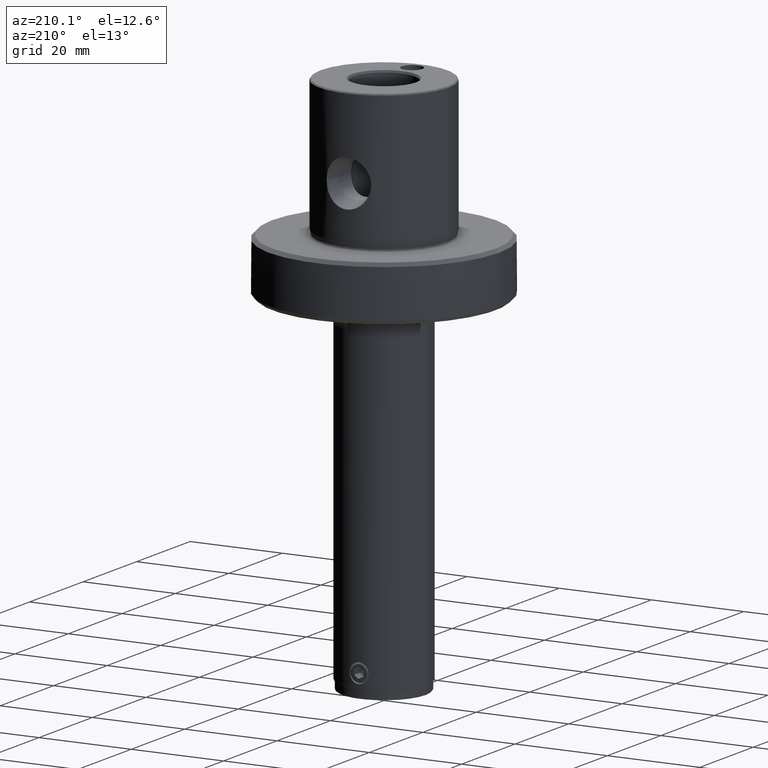
[diagram: clean part render]
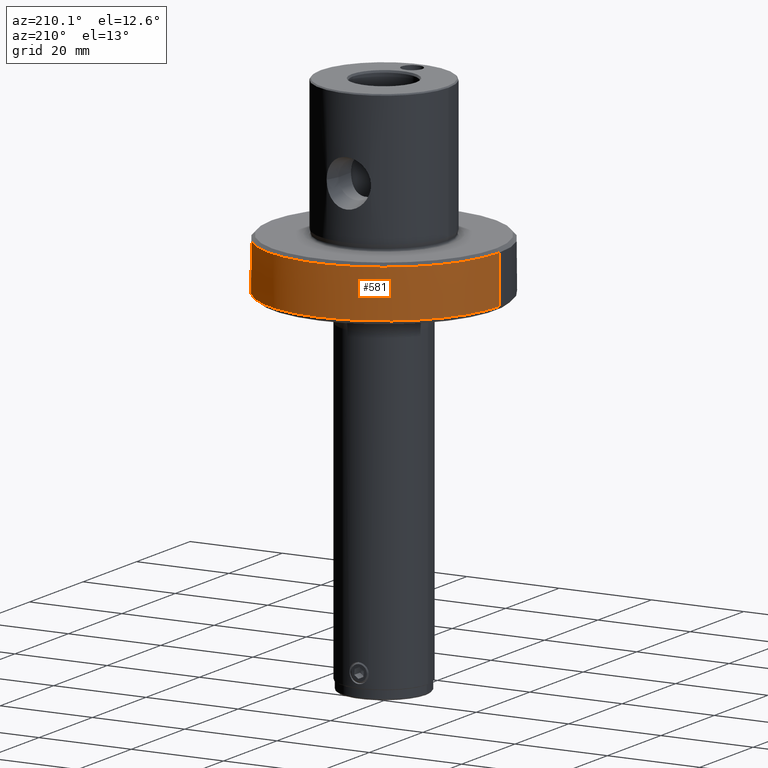
[diagram: same view with one face highlighted and labeled with its STEP entity id]
A machine part, auxiliary view. The second image highlights one B-rep face of the part: STEP entity #581.
In plain terms, the highlighted cylindrical surface (partial cylindrical patch) has radius 25 mm, axis along (-0, -0, 1).
Its self-contained STEP definition (entity closure, byte-faithful):
#561=VERTEX_POINT('NONE',#1587);
#581=ADVANCED_FACE('NONE',(#1609),#1610,.T.);
#893=VERTEX_POINT('NONE',#1951);
#923=EDGE_CURVE('NONE',#893,#1029,#1988,.T.);
#979=EDGE_CURVE('NONE',#561,#1421,#2052,.T.);
#1023=VERTEX_POINT('NONE',#2100);
#1029=VERTEX_POINT('NONE',#2108);
#1199=EDGE_CURVE('NONE',#1421,#1029,#2298,.T.);
#1363=EDGE_CURVE('NONE',#1023,#561,#2478,.T.);
#1421=VERTEX_POINT('NONE',#2547);
#1433=EDGE_CURVE('NONE',#893,#1023,#2564,.T.);
#1587=CARTESIAN_POINT('',(25.0,0.0,-11.05));
#1609=FACE_OUTER_BOUND('',#2756,.T.);
#1610=CYLINDRICAL_SURFACE('',#2757,25.0);
#1951=CARTESIAN_POINT('',(-25.0,3.06151588455594E-015,-11.05));
#1988=LINE('',#3448,#3449);
#2052=LINE('',#3540,#3541);
#2100=CARTESIAN_POINT('',(3.06151588455594E-015,25.0,-11.05));
#2108=CARTESIAN_POINT('',(-25.0,3.06151588455594E-015,-0.72499999999997));
#2298=CIRCLE('',#3886,25.0);
#2478=CIRCLE('',#4164,25.0);
#2547=CARTESIAN_POINT('',(25.0,0.0,-0.72499999999997));
#2564=CIRCLE('',#4266,25.0);
#2756=EDGE_LOOP('',(#4575,#4576,#4577,#4578,#4579));
#2757=AXIS2_PLACEMENT_3D('',#4580,#4581,#4582);
#3448=CARTESIAN_POINT('',(-25.0,3.06151588455594E-015,4.55435641862864));
#3449=VECTOR('',#5005,1000.0);
#3540=CARTESIAN_POINT('',(25.0,0.0,4.55435641862864));
#3541=VECTOR('',#5084,1000.0);
#3886=AXIS2_PLACEMENT_3D('',#5402,#5403,#5404);
#4164=AXIS2_PLACEMENT_3D('',#5621,#5622,#5623);
#4266=AXIS2_PLACEMENT_3D('',#5750,#5751,#5752);
#4575=ORIENTED_EDGE('',*,*,#1433,.F.);
#4576=ORIENTED_EDGE('',*,*,#923,.T.);
#4577=ORIENTED_EDGE('',*,*,#1199,.F.);
#4578=ORIENTED_EDGE('',*,*,#979,.F.);
#4579=ORIENTED_EDGE('',*,*,#1363,.F.);
#4580=CARTESIAN_POINT('',(0.0,0.0,4.55435641862864));
#4581=DIRECTION('',(-0.0,-0.0,1.0));
#4582=DIRECTION('',(1.0,0.0,0.0));
#5005=DIRECTION('',(-0.0,0.0,1.0));
#5084=DIRECTION('',(-0.0,0.0,1.0));
#5402=CARTESIAN_POINT('',(0.0,0.0,-0.72499999999997));
#5403=DIRECTION('',(0.0,0.0,1.0));
#5404=DIRECTION('',(-1.0,0.0,0.0));
#5621=CARTESIAN_POINT('',(0.0,9.13738539168065E-018,-11.05));
#5622=DIRECTION('',(0.0,0.0,-1.0));
#5623=DIRECTION('',(0.0,-1.0,0.0));
#5750=CARTESIAN_POINT('',(0.0,9.13738539168065E-018,-11.05));
#5751=DIRECTION('',(0.0,0.0,-1.0));
#5752=DIRECTION('',(0.0,-1.0,0.0));